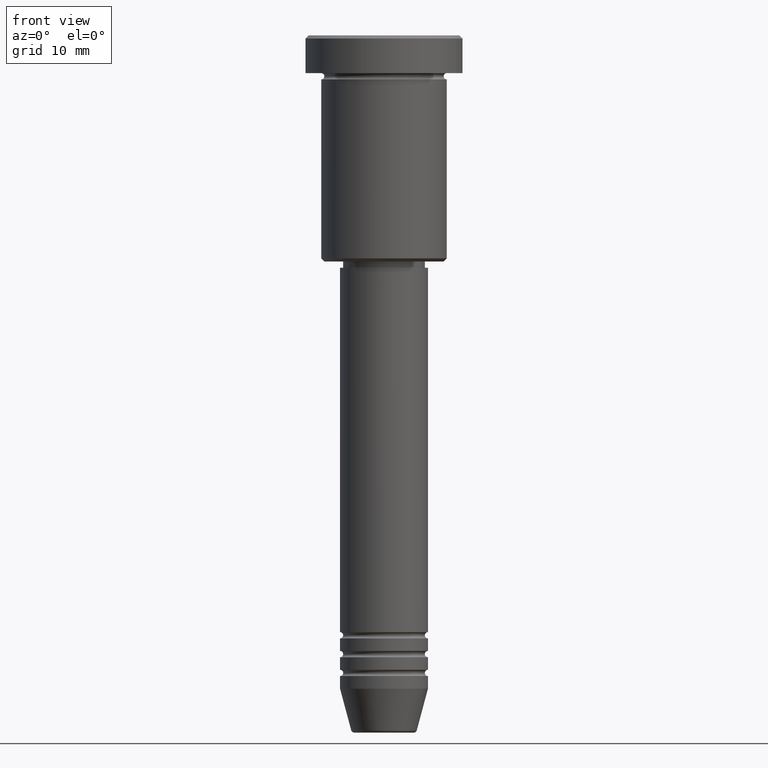
[diagram: clean part render]
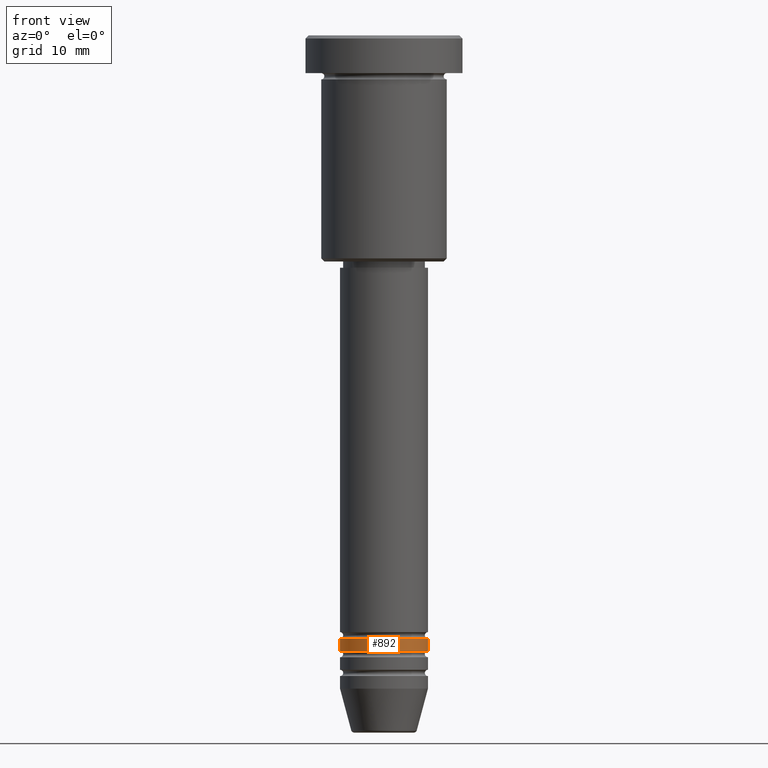
[diagram: same view with one face highlighted and labeled with its STEP entity id]
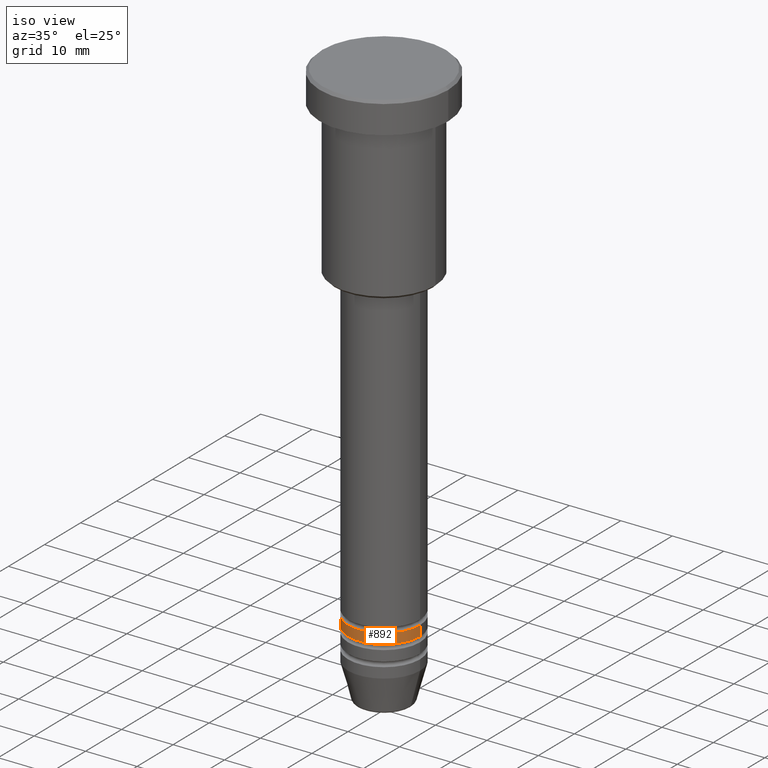
[diagram: same view with one face highlighted and labeled with its STEP entity id]
A machine part, front view. The second image highlights one B-rep face of the part: STEP entity #892.
A second angle (iso view) of the same face is appended — the face is thin or edge-on in the first view.
In plain terms, the highlighted cylindrical surface (partial cylindrical patch) has radius 7 mm, axis along (-0, -0, 1).
Its self-contained STEP definition (entity closure, byte-faithful):
#6 = CYLINDRICAL_SURFACE ( 'NONE', #361, 7.000000000000000000 ) ;
#14 = CARTESIAN_POINT ( 'NONE',  ( 7.000000000000000000, 0.000000000000000000, 0.000000000000000000 ) ) ;
#40 = ORIENTED_EDGE ( 'NONE', *, *, #421, .T. ) ;
#45 = CARTESIAN_POINT ( 'NONE',  ( -7.000000000000000000, 8.572527594031473190E-16, -97.99999999999997158 ) ) ;
#56 = LINE ( 'NONE', #413, #969 ) ;
#88 = DIRECTION ( 'NONE',  ( 1.000000000000000000, 0.000000000000000000, 0.000000000000000000 ) ) ;
#102 = VERTEX_POINT ( 'NONE', #592 ) ;
#134 = EDGE_CURVE ( 'NONE', #1046, #102, #56, .T. ) ;
#341 = CIRCLE ( 'NONE', #783, 7.000000000000000000 ) ;
#361 = AXIS2_PLACEMENT_3D ( 'NONE', #1088, #636, #916 ) ;
#413 = CARTESIAN_POINT ( 'NONE',  ( -7.000000000000000000, 8.572527594031473190E-16, 0.000000000000000000 ) ) ;
#421 = EDGE_CURVE ( 'NONE', #1046, #992, #782, .T. ) ;
#457 = ORIENTED_EDGE ( 'NONE', *, *, #706, .F. ) ;
#473 = CARTESIAN_POINT ( 'NONE',  ( 7.000000000000000000, 0.000000000000000000, -97.99999999999997158 ) ) ;
#529 = DIRECTION ( 'NONE',  ( 1.000000000000000000, 0.000000000000000000, 0.000000000000000000 ) ) ;
#541 = DIRECTION ( 'NONE',  ( -0.000000000000000000, -0.000000000000000000, 1.000000000000000000 ) ) ;
#592 = CARTESIAN_POINT ( 'NONE',  ( -7.000000000000000000, 8.572527594031473190E-16, -95.99999999999998579 ) ) ;
#615 = DIRECTION ( 'NONE',  ( -0.000000000000000000, -0.000000000000000000, 1.000000000000000000 ) ) ;
#636 = DIRECTION ( 'NONE',  ( -0.000000000000000000, -0.000000000000000000, 1.000000000000000000 ) ) ;
#649 = DIRECTION ( 'NONE',  ( -0.000000000000000000, -0.000000000000000000, 1.000000000000000000 ) ) ;
#706 = EDGE_CURVE ( 'NONE', #102, #1089, #341, .T. ) ;
#731 = FACE_OUTER_BOUND ( 'NONE', #1154, .T. ) ;
#732 = ORIENTED_EDGE ( 'NONE', *, *, #134, .F. ) ;
#735 = LINE ( 'NONE', #14, #857 ) ;
#748 = ORIENTED_EDGE ( 'NONE', *, *, #935, .T. ) ;
#781 = DIRECTION ( 'NONE',  ( -0.000000000000000000, -0.000000000000000000, 1.000000000000000000 ) ) ;
#782 = CIRCLE ( 'NONE', #799, 7.000000000000000000 ) ;
#783 = AXIS2_PLACEMENT_3D ( 'NONE', #978, #615, #529 ) ;
#799 = AXIS2_PLACEMENT_3D ( 'NONE', #1090, #541, #88 ) ;
#857 = VECTOR ( 'NONE', #649, 1000.000000000000000 ) ;
#892 = ADVANCED_FACE ( 'NONE', ( #731 ), #6, .T. ) ;
#916 = DIRECTION ( 'NONE',  ( 1.000000000000000000, 0.000000000000000000, 0.000000000000000000 ) ) ;
#935 = EDGE_CURVE ( 'NONE', #992, #1089, #735, .T. ) ;
#969 = VECTOR ( 'NONE', #781, 1000.000000000000000 ) ;
#978 = CARTESIAN_POINT ( 'NONE',  ( 0.000000000000000000, 0.000000000000000000, -95.99999999999998579 ) ) ;
#992 = VERTEX_POINT ( 'NONE', #473 ) ;
#1046 = VERTEX_POINT ( 'NONE', #45 ) ;
#1088 = CARTESIAN_POINT ( 'NONE',  ( 0.000000000000000000, 0.000000000000000000, 0.000000000000000000 ) ) ;
#1089 = VERTEX_POINT ( 'NONE', #1126 ) ;
#1090 = CARTESIAN_POINT ( 'NONE',  ( 0.000000000000000000, 0.000000000000000000, -97.99999999999997158 ) ) ;
#1126 = CARTESIAN_POINT ( 'NONE',  ( 7.000000000000000000, 0.000000000000000000, -95.99999999999998579 ) ) ;
#1154 = EDGE_LOOP ( 'NONE', ( #732, #40, #748, #457 ) ) ;